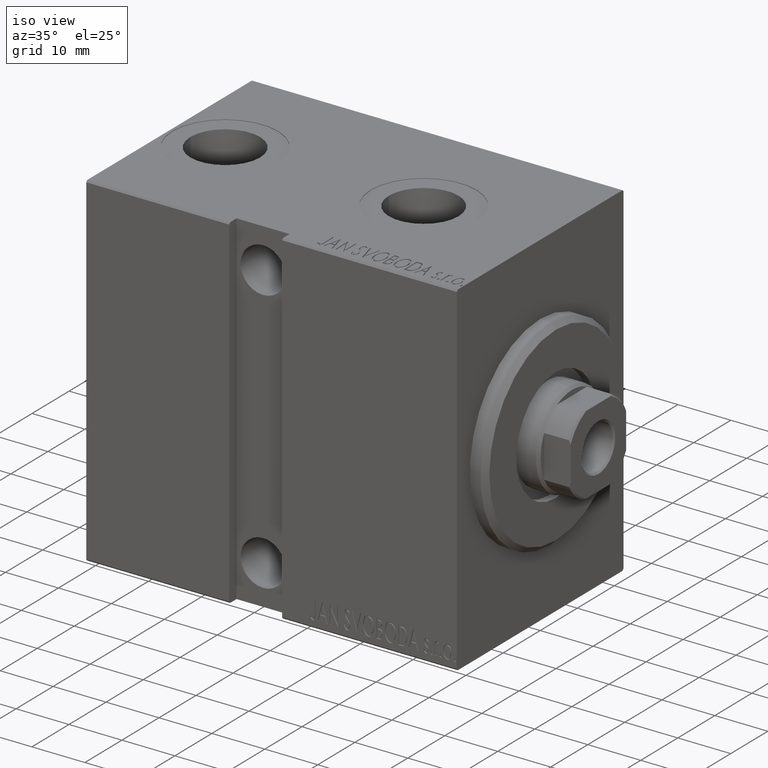
[diagram: clean part render]
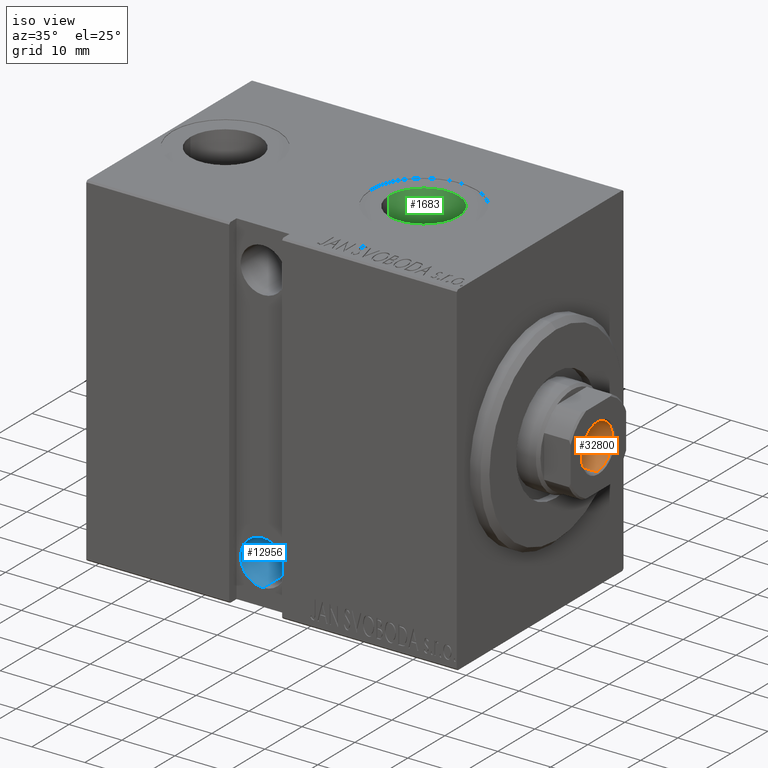
[diagram: same view with three faces highlighted in distinct colors, each labeled with its STEP entity id]
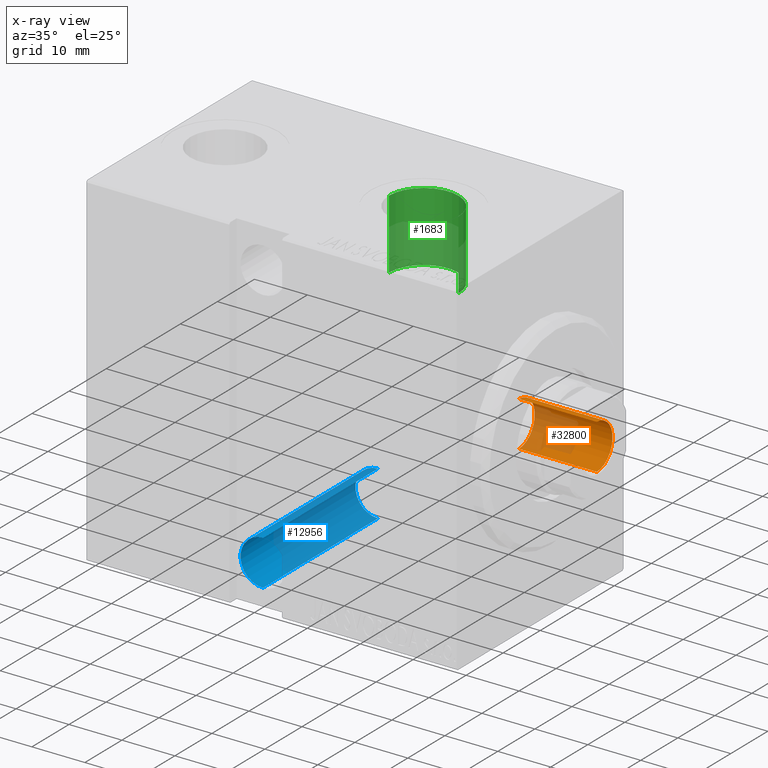
[diagram: x-ray of the same camera — body ghosted, the three highlighted faces saturated]
A machine part, iso view with three faces highlighted in distinct colors.
The next image is the same camera in x-ray (body ghosted, the three faces saturated) — at least one of them is partly hidden behind the body in this view.
Their STEP definitions:

[orange] entity #32800 — the highlighted cylindrical surface (edge-blend (fillet) strip) has radius 4.25 mm, axis along (1, 0, -0).
#754 = DIRECTION ( 'NONE',  ( -0.000000000000000000, -0.000000000000000000, 1.000000000000000000 ) ) ;
#1073 = VERTEX_POINT ( 'NONE', #13959 ) ;
#1448 = DIRECTION ( 'NONE',  ( 1.000000000000000000, 0.000000000000000000, 0.000000000000000000 ) ) ;
#3913 = CIRCLE ( 'NONE', #39263, 4.249999999999997335 ) ;
#6482 = CARTESIAN_POINT ( 'NONE',  ( 4.249999999999997335, 0.000000000000000000, 75.00000000000001421 ) ) ;
#7393 = ORIENTED_EDGE ( 'NONE', *, *, #36527, .F. ) ;
#8633 = CARTESIAN_POINT ( 'NONE',  ( 4.249999999999997335, 0.000000000000000000, 74.70000000000001705 ) ) ;
#9293 = CARTESIAN_POINT ( 'NONE',  ( -4.249999999999996447, 5.204748896376247741E-16, 60.00000000000001421 ) ) ;
#10018 = CARTESIAN_POINT ( 'NONE',  ( -4.249999999999997335, 5.204748896376248727E-16, 75.00000000000001421 ) ) ;
#10350 = DIRECTION ( 'NONE',  ( -0.000000000000000000, -0.000000000000000000, 1.000000000000000000 ) ) ;
#10553 = DIRECTION ( 'NONE',  ( 1.000000000000000000, 0.000000000000000000, 0.000000000000000000 ) ) ;
#10971 = DIRECTION ( 'NONE',  ( 1.000000000000000000, 0.000000000000000000, 0.000000000000000000 ) ) ;
#12409 = CIRCLE ( 'NONE', #20743, 4.249999999999996447 ) ;
#13730 = AXIS2_PLACEMENT_3D ( 'NONE', #17262, #754, #10971 ) ;
#13959 = CARTESIAN_POINT ( 'NONE',  ( -4.249999999999997335, 5.204748896376248727E-16, 74.70000000000001705 ) ) ;
#17262 = CARTESIAN_POINT ( 'NONE',  ( 0.000000000000000000, 0.000000000000000000, 75.00000000000001421 ) ) ;
#17900 = CYLINDRICAL_SURFACE ( 'NONE', #13730, 4.249999999999997335 ) ;
#18346 = ORIENTED_EDGE ( 'NONE', *, *, #36081, .F. ) ;
#19725 = VERTEX_POINT ( 'NONE', #9293 ) ;
#20708 = VECTOR ( 'NONE', #42932, 1000.000000000000000 ) ;
#20743 = AXIS2_PLACEMENT_3D ( 'NONE', #40483, #10350, #10553 ) ;
#21225 = LINE ( 'NONE', #10018, #32507 ) ;
#23390 = ORIENTED_EDGE ( 'NONE', *, *, #35204, .T. ) ;
#26216 = VERTEX_POINT ( 'NONE', #39205 ) ;
#26725 = DIRECTION ( 'NONE',  ( -0.000000000000000000, -0.000000000000000000, 1.000000000000000000 ) ) ;
#28749 = EDGE_LOOP ( 'NONE', ( #18346, #7393, #23390, #30474 ) ) ;
#28759 = EDGE_CURVE ( 'NONE', #30392, #1073, #3913, .T. ) ;
#30392 = VERTEX_POINT ( 'NONE', #8633 ) ;
#30474 = ORIENTED_EDGE ( 'NONE', *, *, #28759, .T. ) ;
#32507 = VECTOR ( 'NONE', #26725, 1000.000000000000000 ) ;
#32800 = ADVANCED_FACE ( 'NONE', ( #33753 ), #17900, .F. ) ;
#33584 = DIRECTION ( 'NONE',  ( 0.000000000000000000, 0.000000000000000000, 1.000000000000000000 ) ) ;
#33753 = FACE_OUTER_BOUND ( 'NONE', #28749, .T. ) ;
#35204 = EDGE_CURVE ( 'NONE', #26216, #30392, #36213, .T. ) ;
#36081 = EDGE_CURVE ( 'NONE', #19725, #1073, #21225, .T. ) ;
#36213 = LINE ( 'NONE', #6482, #20708 ) ;
#36527 = EDGE_CURVE ( 'NONE', #26216, #19725, #12409, .T. ) ;
#39205 = CARTESIAN_POINT ( 'NONE',  ( 4.249999999999996447, 0.000000000000000000, 60.00000000000001421 ) ) ;
#39263 = AXIS2_PLACEMENT_3D ( 'NONE', #40300, #33584, #1448 ) ;
#40300 = CARTESIAN_POINT ( 'NONE',  ( 0.000000000000000000, 0.000000000000000000, 74.70000000000001705 ) ) ;
#40483 = CARTESIAN_POINT ( 'NONE',  ( 0.000000000000000000, 0.000000000000000000, 60.00000000000001421 ) ) ;
#42932 = DIRECTION ( 'NONE',  ( -0.000000000000000000, -0.000000000000000000, 1.000000000000000000 ) ) ;

[blue] entity #12956 — the highlighted cylindrical surface (edge-blend (fillet) strip) has radius 4.25 mm, axis along (0, -1, 0).
#1003 = DIRECTION ( 'NONE',  ( -0.000000000000000000, 1.000000000000000000, -0.000000000000000000 ) ) ;
#1910 = VERTEX_POINT ( 'NONE', #10433 ) ;
#2700 = ORIENTED_EDGE ( 'NONE', *, *, #28152, .F. ) ;
#4213 = FACE_OUTER_BOUND ( 'NONE', #24661, .T. ) ;
#4735 = VECTOR ( 'NONE', #1003, 1000.000000000000000 ) ;
#6929 = ORIENTED_EDGE ( 'NONE', *, *, #26094, .F. ) ;
#8640 = DIRECTION ( 'NONE',  ( 0.000000000000000000, -1.000000000000000000, 0.000000000000000000 ) ) ;
#10433 = CARTESIAN_POINT ( 'NONE',  ( 38.00000000000001421, -10.49999999999999822, -29.25000000000000000 ) ) ;
#11872 = CARTESIAN_POINT ( 'NONE',  ( 38.00000000000001421, -22.50000000000001421, -29.25000000000000000 ) ) ;
#12805 = EDGE_CURVE ( 'NONE', #1910, #13171, #41584, .T. ) ;
#12956 = ADVANCED_FACE ( 'NONE', ( #4213 ), #23354, .F. ) ;
#13171 = VERTEX_POINT ( 'NONE', #16996 ) ;
#13894 = CARTESIAN_POINT ( 'NONE',  ( 38.00000000000001421, -10.49999999999999822, -20.75000000000000355 ) ) ;
#14015 = AXIS2_PLACEMENT_3D ( 'NONE', #16835, #20722, #33742 ) ;
#15357 = CARTESIAN_POINT ( 'NONE',  ( 38.00000000000001421, -10.49999999999999822, -25.00000000000000000 ) ) ;
#16835 = CARTESIAN_POINT ( 'NONE',  ( 38.00000000000001421, -22.50000000000001421, -25.00000000000000000 ) ) ;
#16996 = CARTESIAN_POINT ( 'NONE',  ( 38.00000000000001421, 20.49999999999999645, -29.25000000000000000 ) ) ;
#20722 = DIRECTION ( 'NONE',  ( -0.000000000000000000, 1.000000000000000000, -0.000000000000000000 ) ) ;
#20983 = LINE ( 'NONE', #27707, #4735 ) ;
#21416 = DIRECTION ( 'NONE',  ( -0.000000000000000000, 1.000000000000000000, -0.000000000000000000 ) ) ;
#23354 = CYLINDRICAL_SURFACE ( 'NONE', #14015, 4.249999999999996447 ) ;
#24661 = EDGE_LOOP ( 'NONE', ( #40506, #6929, #31609, #2700 ) ) ;
#24707 = DIRECTION ( 'NONE',  ( -0.000000000000000000, 1.000000000000000000, -1.963837897332234442E-16 ) ) ;
#25352 = CIRCLE ( 'NONE', #36415, 4.249999999999996447 ) ;
#25584 = DIRECTION ( 'NONE',  ( 0.000000000000000000, 0.000000000000000000, -1.000000000000000000 ) ) ;
#26094 = EDGE_CURVE ( 'NONE', #40272, #1910, #25352, .T. ) ;
#27707 = CARTESIAN_POINT ( 'NONE',  ( 38.00000000000001421, -22.50000000000001421, -20.75000000000000355 ) ) ;
#28152 = EDGE_CURVE ( 'NONE', #13171, #39948, #31615, .T. ) ;
#28396 = CARTESIAN_POINT ( 'NONE',  ( 38.00000000000001421, 20.49999999999999645, -25.00000000000000000 ) ) ;
#28599 = DIRECTION ( 'NONE',  ( 0.000000000000000000, 0.000000000000000000, -1.000000000000000000 ) ) ;
#30453 = CARTESIAN_POINT ( 'NONE',  ( 38.00000000000001421, 20.49999999999999645, -20.75000000000000355 ) ) ;
#31609 = ORIENTED_EDGE ( 'NONE', *, *, #34314, .T. ) ;
#31615 = CIRCLE ( 'NONE', #33722, 4.249999999999996447 ) ;
#33722 = AXIS2_PLACEMENT_3D ( 'NONE', #28396, #8640, #25584 ) ;
#33742 = DIRECTION ( 'NONE',  ( 0.000000000000000000, 0.000000000000000000, 1.000000000000000000 ) ) ;
#34314 = EDGE_CURVE ( 'NONE', #40272, #39948, #20983, .T. ) ;
#36415 = AXIS2_PLACEMENT_3D ( 'NONE', #15357, #24707, #28599 ) ;
#36878 = VECTOR ( 'NONE', #21416, 1000.000000000000000 ) ;
#39948 = VERTEX_POINT ( 'NONE', #30453 ) ;
#40272 = VERTEX_POINT ( 'NONE', #13894 ) ;
#40506 = ORIENTED_EDGE ( 'NONE', *, *, #12805, .F. ) ;
#41584 = LINE ( 'NONE', #11872, #36878 ) ;

[green] entity #1683 — the highlighted cylindrical surface (partial cylindrical patch) has radius 6.58 mm, axis along (0, 0, 1).
#690 = DIRECTION ( 'NONE',  ( 1.000000000000000000, 0.000000000000000000, 0.000000000000000000 ) ) ;
#868 = DIRECTION ( 'NONE',  ( 1.000000000000000000, 0.000000000000000000, 0.000000000000000000 ) ) ;
#1683 = ADVANCED_FACE ( 'NONE', ( #10907 ), #37574, .F. ) ;
#2022 = EDGE_CURVE ( 'NONE', #40840, #16739, #14521, .T. ) ;
#3959 = CARTESIAN_POINT ( 'NONE',  ( 22.00000000000000000, -5.011423375044110611E-15, 19.23999999999999844 ) ) ;
#4037 = EDGE_CURVE ( 'NONE', #16739, #16216, #9324, .T. ) ;
#6179 = ORIENTED_EDGE ( 'NONE', *, *, #2022, .T. ) ;
#7858 = DIRECTION ( 'NONE',  ( -0.000000000000000000, -0.000000000000000000, 1.000000000000000000 ) ) ;
#9324 = CIRCLE ( 'NONE', #24607, 6.579999999999999183 ) ;
#10126 = VECTOR ( 'NONE', #17644, 1000.000000000000000 ) ;
#10907 = FACE_OUTER_BOUND ( 'NONE', #29084, .T. ) ;
#11432 = AXIS2_PLACEMENT_3D ( 'NONE', #40681, #33539, #30511 ) ;
#13737 = EDGE_CURVE ( 'NONE', #40840, #37643, #14891, .T. ) ;
#14521 = LINE ( 'NONE', #31887, #41802 ) ;
#14891 = CIRCLE ( 'NONE', #11432, 6.579999999999999183 ) ;
#16057 = CARTESIAN_POINT ( 'NONE',  ( 28.57999999999999829, -5.011423375044110611E-15, 19.23999999999999844 ) ) ;
#16216 = VERTEX_POINT ( 'NONE', #42732 ) ;
#16739 = VERTEX_POINT ( 'NONE', #36071 ) ;
#17150 = ORIENTED_EDGE ( 'NONE', *, *, #26634, .F. ) ;
#17644 = DIRECTION ( 'NONE',  ( -0.000000000000000000, -0.000000000000000000, 1.000000000000000000 ) ) ;
#21065 = DIRECTION ( 'NONE',  ( 0.000000000000000000, 0.000000000000000000, 1.000000000000000000 ) ) ;
#21331 = CARTESIAN_POINT ( 'NONE',  ( 15.41999999999999993, -4.205605781205152358E-15, 19.23999999999999844 ) ) ;
#21474 = DIRECTION ( 'NONE',  ( -0.000000000000000000, -0.000000000000000000, 1.000000000000000000 ) ) ;
#24607 = AXIS2_PLACEMENT_3D ( 'NONE', #30626, #21065, #868 ) ;
#26634 = EDGE_CURVE ( 'NONE', #37643, #16216, #27414, .T. ) ;
#27414 = LINE ( 'NONE', #31533, #10126 ) ;
#28703 = ORIENTED_EDGE ( 'NONE', *, *, #13737, .F. ) ;
#29084 = EDGE_LOOP ( 'NONE', ( #28703, #6179, #39735, #17150 ) ) ;
#30511 = DIRECTION ( 'NONE',  ( 1.000000000000000000, 0.000000000000000000, 0.000000000000000000 ) ) ;
#30626 = CARTESIAN_POINT ( 'NONE',  ( 22.00000000000000000, -5.011423375044110611E-15, 32.39999999999999858 ) ) ;
#31533 = CARTESIAN_POINT ( 'NONE',  ( 28.57999999999999829, -5.011423375044110611E-15, 19.23999999999999844 ) ) ;
#31887 = CARTESIAN_POINT ( 'NONE',  ( 15.41999999999999993, -4.205605781205152358E-15, 19.23999999999999844 ) ) ;
#33539 = DIRECTION ( 'NONE',  ( 0.000000000000000000, 0.000000000000000000, 1.000000000000000000 ) ) ;
#34122 = AXIS2_PLACEMENT_3D ( 'NONE', #3959, #7858, #690 ) ;
#36071 = CARTESIAN_POINT ( 'NONE',  ( 15.41999999999999993, -4.205605781205152358E-15, 32.39999999999999858 ) ) ;
#37574 = CYLINDRICAL_SURFACE ( 'NONE', #34122, 6.579999999999999183 ) ;
#37643 = VERTEX_POINT ( 'NONE', #16057 ) ;
#39735 = ORIENTED_EDGE ( 'NONE', *, *, #4037, .T. ) ;
#40681 = CARTESIAN_POINT ( 'NONE',  ( 22.00000000000000000, -5.011423375044110611E-15, 19.23999999999999844 ) ) ;
#40840 = VERTEX_POINT ( 'NONE', #21331 ) ;
#41802 = VECTOR ( 'NONE', #21474, 1000.000000000000000 ) ;
#42732 = CARTESIAN_POINT ( 'NONE',  ( 28.57999999999999829, -5.011423375044110611E-15, 32.39999999999999858 ) ) ;